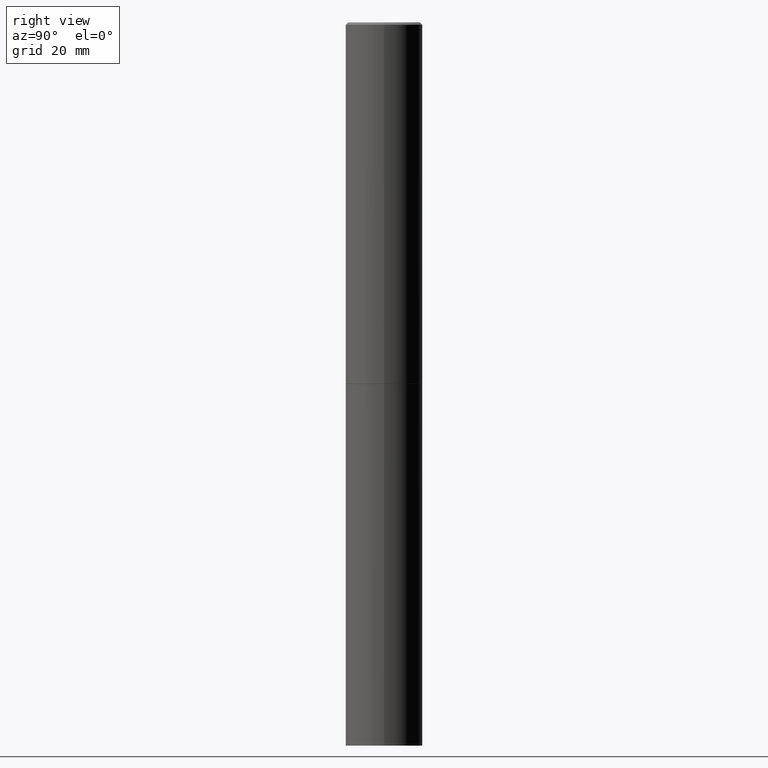
[diagram: clean part render]
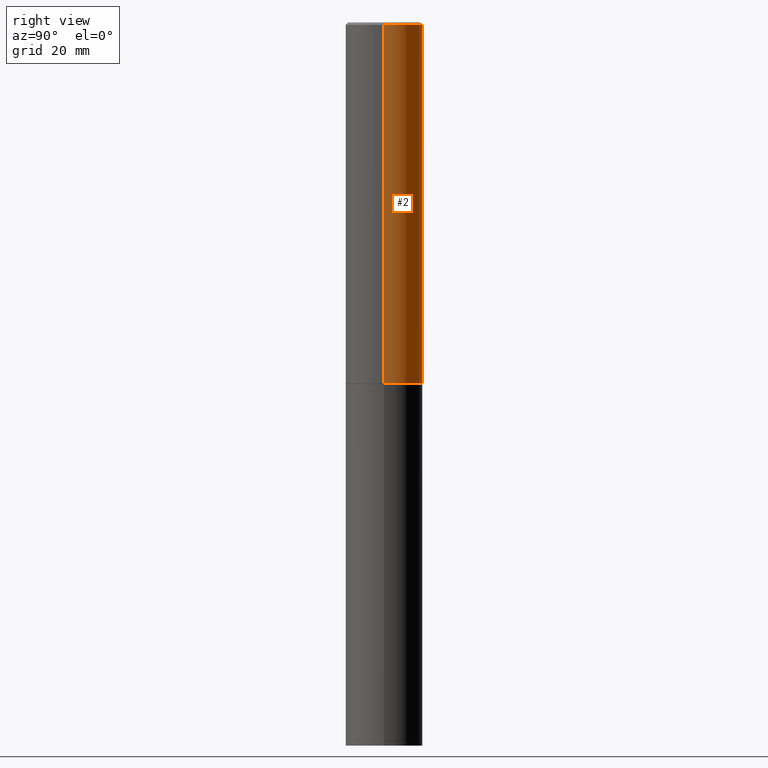
[diagram: same view with one face highlighted and labeled with its STEP entity id]
A machine part, right view. The second image highlights one B-rep face of the part: STEP entity #2.
In plain terms, the highlighted cylindrical surface (partial cylindrical patch) has radius 7.9997 mm, axis along (-0, 0, 1).
Its self-contained STEP definition (entity closure, byte-faithful):
#2 = ADVANCED_FACE ( 'NONE', ( #137 ), #366, .T. ) ;
#3 = VECTOR ( 'NONE', #33, 39.37007874015748143 ) ;
#14 = DIRECTION ( 'NONE',  ( -2.445468806185136597E-29, 3.491481338843145583E-15, 1.000000000000000000 ) ) ;
#17 = EDGE_CURVE ( 'NONE', #129, #159, #68, .T. ) ;
#22 = DIRECTION ( 'NONE',  ( -2.445468806185136597E-29, 3.491481338843145583E-15, 1.000000000000000000 ) ) ;
#24 = EDGE_LOOP ( 'NONE', ( #111, #276, #194, #245 ) ) ;
#33 = DIRECTION ( 'NONE',  ( -2.445468806185136877E-29, 3.491481338843145188E-15, 1.000000000000000000 ) ) ;
#47 = DIRECTION ( 'NONE',  ( -2.445468806185136597E-29, 3.491481338843145583E-15, 1.000000000000000000 ) ) ;
#57 = CARTESIAN_POINT ( 'NONE',  ( 0.000000000000000000, 0.000000000000000000, 0.000000000000000000 ) ) ;
#62 = CARTESIAN_POINT ( 'NONE',  ( 0.3149500000000000077, -1.250508956320060346E-14, -2.951700000000000212 ) ) ;
#68 = LINE ( 'NONE', #94, #282 ) ;
#72 = CIRCLE ( 'NONE', #320, 0.3149500000000000077 ) ;
#80 = VERTEX_POINT ( 'NONE', #121 ) ;
#82 = AXIS2_PLACEMENT_3D ( 'NONE', #57, #14, #321 ) ;
#89 = DIRECTION ( 'NONE',  ( 1.000000000000000000, -6.982962677686263555E-15, 0.000000000000000000 ) ) ;
#94 = CARTESIAN_POINT ( 'NONE',  ( -0.3149499999999998967, 2.237854346276434801E-15, -1.549218606675782116E-29 ) ) ;
#100 = CIRCLE ( 'NONE', #296, 0.3149499999999996747 ) ;
#108 = VERTEX_POINT ( 'NONE', #62 ) ;
#111 = ORIENTED_EDGE ( 'NONE', *, *, #329, .T. ) ;
#112 = CARTESIAN_POINT ( 'NONE',  ( 7.218290275216666916E-29, -1.030580546786331359E-14, -2.951700000000000212 ) ) ;
#119 = EDGE_CURVE ( 'NONE', #108, #80, #351, .T. ) ;
#121 = CARTESIAN_POINT ( 'NONE',  ( 0.3149499999999996747, -2.230543471175005083E-15, -0.02000000000000007327 ) ) ;
#129 = VERTEX_POINT ( 'NONE', #207 ) ;
#137 = FACE_OUTER_BOUND ( 'NONE', #24, .T. ) ;
#159 = VERTEX_POINT ( 'NONE', #301 ) ;
#162 = DIRECTION ( 'NONE',  ( 1.000000000000000000, -6.982962677686266711E-15, 0.000000000000000000 ) ) ;
#194 = ORIENTED_EDGE ( 'NONE', *, *, #267, .F. ) ;
#202 = DIRECTION ( 'NONE',  ( -2.445468806185136877E-29, 3.491481338843145188E-15, 1.000000000000000000 ) ) ;
#203 = CARTESIAN_POINT ( 'NONE',  ( 0.3149499999999998967, -2.199284095337288688E-15, 1.535751875536929289E-29 ) ) ;
#207 = CARTESIAN_POINT ( 'NONE',  ( -0.3149500000000000077, -2.949963201043651274E-15, -2.951700000000000212 ) ) ;
#245 = ORIENTED_EDGE ( 'NONE', *, *, #119, .F. ) ;
#267 = EDGE_CURVE ( 'NONE', #80, #159, #100, .T. ) ;
#276 = ORIENTED_EDGE ( 'NONE', *, *, #17, .T. ) ;
#282 = VECTOR ( 'NONE', #202, 39.37007874015748143 ) ;
#296 = AXIS2_PLACEMENT_3D ( 'NONE', #309, #47, #162 ) ;
#301 = CARTESIAN_POINT ( 'NONE',  ( -0.3149499999999996747, 2.129454468560424206E-15, -0.02000000000000007327 ) ) ;
#309 = CARTESIAN_POINT ( 'NONE',  ( 4.890937612370290675E-31, -6.982962677686316261E-17, -0.02000000000000007327 ) ) ;
#320 = AXIS2_PLACEMENT_3D ( 'NONE', #112, #22, #89 ) ;
#321 = DIRECTION ( 'NONE',  ( 1.000000000000000000, -6.982962677686265922E-15, 4.876176775795935232E-29 ) ) ;
#329 = EDGE_CURVE ( 'NONE', #108, #129, #72, .T. ) ;
#351 = LINE ( 'NONE', #203, #3 ) ;
#366 = CYLINDRICAL_SURFACE ( 'NONE', #82, 0.3149499999999998967 ) ;